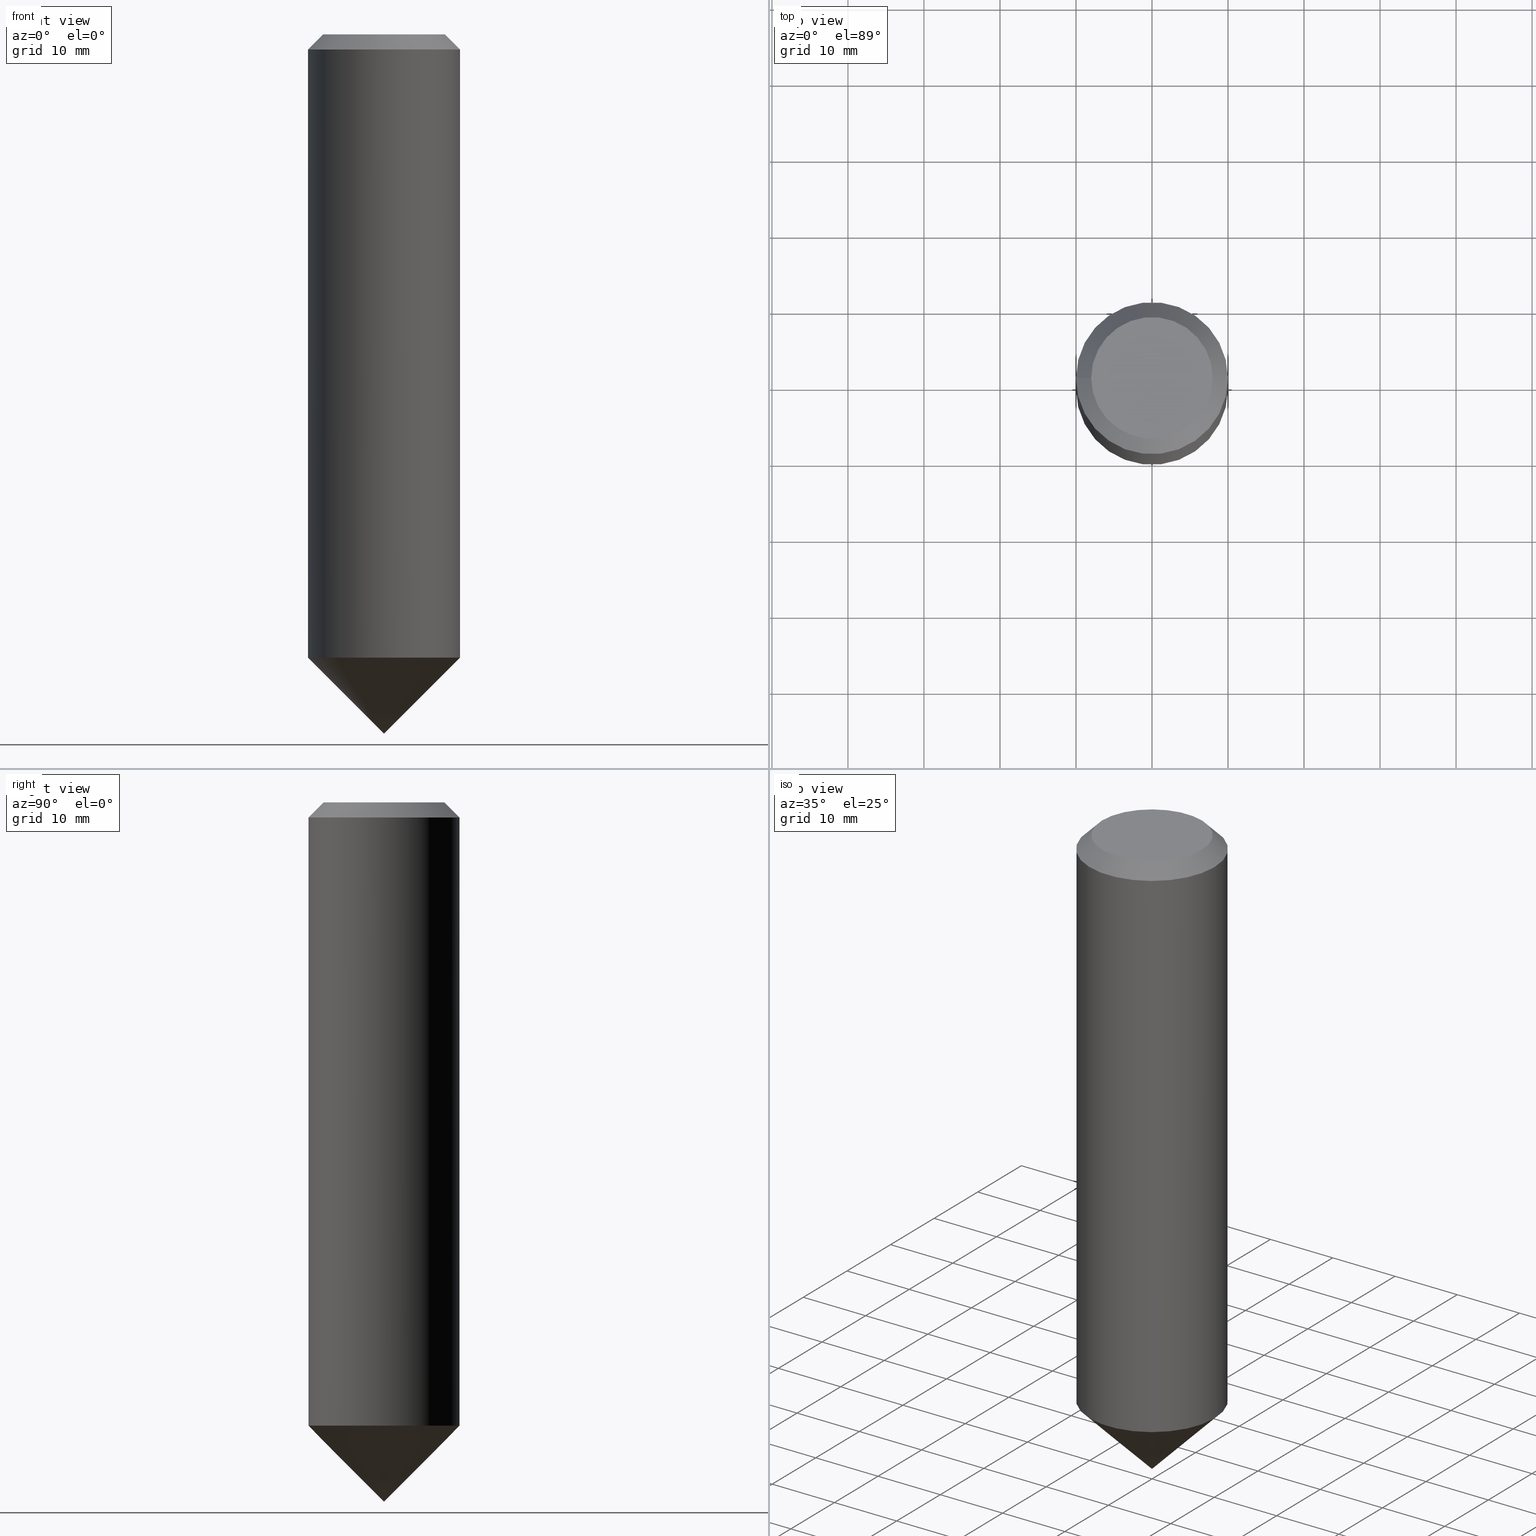
[diagram: canonical four-view strip — front | top / right | iso, engineering-drawing reading convention]
A machine part, canonical four-view strip (front | top / right | iso — engineering-drawing reading convention). The complete STEP part file that produces these views, byte-faithful:
ISO-10303-21;
HEADER;
FILE_DESCRIPTION (( 'STEP AP203' ),
    '1' );
FILE_NAME ('890.200.00.STEP',
    '2019-01-08T22:16:13',
    ( '' ),
    ( '' ),
    'SwSTEP 2.0',
    'SolidWorks 2019',
    '' );
FILE_SCHEMA (( 'CONFIG_CONTROL_DESIGN' ));
ENDSEC;

DATA;
#1 = PERSON_AND_ORGANIZATION ( #126, #155 ) ;
#2 = APPLICATION_PROTOCOL_DEFINITION ( 'international standard', 'config_control_design', 1994, #69 ) ;
#3 = DATE_TIME_ROLE ( 'creation_date' ) ;
#4 = DATE_TIME_ROLE ( 'classification_date' ) ;
#5 = AXIS2_PLACEMENT_3D ( 'NONE', #21, #60, #72 ) ;
#6 = EDGE_LOOP ( 'NONE', ( #19 ) ) ;
#7 = DIRECTION ( 'NONE',  ( -6.982962677686266711E-15, 0.0000000000000000000, -1.000000000000000000 ) ) ;
#8 = FACE_OUTER_BOUND ( 'NONE', #6, .T. ) ;
#9 = FACE_OUTER_BOUND ( 'NONE', #61, .T. ) ;
#10 = DIRECTION ( 'NONE',  ( -6.982962677686266711E-15, 0.0000000000000000000, -1.000000000000000000 ) ) ;
#11 = DIRECTION ( 'NONE',  ( -6.982962677686266711E-15, 0.0000000000000000000, -1.000000000000000000 ) ) ;
#12 = ORIENTED_EDGE ( 'NONE', *, *, #55, .T. ) ;
#13 = PERSON_AND_ORGANIZATION ( #126, #155 ) ;
#14 = PRODUCT_DEFINITION ( 'UNKNOWN', '', #106, #64 ) ;
#15 = LOCAL_TIME ( 23, 16, 13.00000000000000000, #170 ) ;
#16 = APPLICATION_PROTOCOL_DEFINITION ( 'international standard', 'config_control_design', 1994, #175 ) ;
#17 = FACE_OUTER_BOUND ( 'NONE', #46, .T. ) ;
#18 = FACE_OUTER_BOUND ( 'NONE', #173, .T. ) ;
#19 = ORIENTED_EDGE ( 'NONE', *, *, #167, .T. ) ;
#20 = CC_DESIGN_APPROVAL ( #136, ( #14 ) ) ;
#21 = CARTESIAN_POINT ( 'NONE',  ( -1.396592535537254604E-14, 0.0000000000000000000, -2.000000000000001776 ) ) ;
#22 = ORIENTED_EDGE ( 'NONE', *, *, #55, .F. ) ;
#23 = FACE_BOUND ( 'NONE', #176, .T. ) ;
#24 = DATE_AND_TIME ( #171, #156 ) ;
#25 = DATE_AND_TIME ( #107, #44 ) ;
#26 = EDGE_CURVE ( 'NONE', #179, #179, #123, .T. ) ;
#27 = PRODUCT ( '890.200.00', '890.200.00', '', ( #68 ) ) ;
#28 = CC_DESIGN_PERSON_AND_ORGANIZATION_ASSIGNMENT ( #13, #165, ( #106 ) ) ;
#29 = CONICAL_SURFACE ( 'NONE', #51, 1000.000000000003070, 0.7853981633974499443 ) ;
#30 = PERSON_AND_ORGANIZATION ( #126, #155 ) ;
#31 = APPROVAL_DATE_TIME ( #153, #136 ) ;
#32 = ADVANCED_FACE ( 'NONE', ( #9 ), #29, .T. ) ;
#33 = LOCAL_TIME ( 23, 16, 13.00000000000000000, #154 ) ;
#34 = MANIFOLD_SOLID_BREP ( 'TYp 17 drehen[1]', #99 ) ;
#35 = DIRECTION ( 'NONE',  ( -1.000000000000000000, 0.0000000000000000000, 6.982962677686266711E-15 ) ) ;
#36 = CC_DESIGN_PERSON_AND_ORGANIZATION_ASSIGNMENT ( #1, #108, ( #148 ) ) ;
#37 = CARTESIAN_POINT ( 'NONE',  ( 0.0000000000000000000, 0.0000000000000000000, 0.0000000000000000000 ) ) ;
#38 = APPROVAL_ROLE ( '' ) ;
#39 = APPROVAL_STATUS ( 'not_yet_approved' ) ;
#40 = PERSON_AND_ORGANIZATION ( #126, #155 ) ;
#41 = APPROVAL ( #39, 'UNSPECIFIED' ) ;
#42 = DATE_AND_TIME ( #91, #15 ) ;
#43 = DIRECTION ( 'NONE',  ( 0.0000000000000000000, 0.0000000000000000000, 1.000000000000000000 ) ) ;
#44 = LOCAL_TIME ( 23, 16, 13.00000000000000000, #52 ) ;
#45 = CC_DESIGN_APPROVAL ( #164, ( #106 ) ) ;
#46 = EDGE_LOOP ( 'NONE', ( #142 ) ) ;
#47 = CARTESIAN_POINT ( 'NONE',  ( 9.999999999999422684, 0.0000000000000000000, -82.00000000000009948 ) ) ;
#48 = AXIS2_PLACEMENT_3D ( 'NONE', #73, #129, #144 ) ;
#49 = EDGE_CURVE ( 'NONE', #127, #127, #83, .T. ) ;
#50 = PLANE ( 'NONE',  #158 ) ;
#51 = AXIS2_PLACEMENT_3D ( 'NONE', #59, #102, #161 ) ;
#52 = COORDINATED_UNIVERSAL_TIME_OFFSET ( 1, 0, .AHEAD. ) ;
#53 = ADVANCED_BREP_SHAPE_REPRESENTATION ( '890.200.00', ( #34, #151, #131 ), #166 ) ;
#54 = APPROVAL_ROLE ( '' ) ;
#55 = EDGE_CURVE ( 'NONE', #174, #174, #121, .T. ) ;
#56 = UNCERTAINTY_MEASURE_WITH_UNIT (LENGTH_MEASURE( 1.000000000000000082E-05 ), #146, 'distance_accuracy_value', 'NONE');
#57 = FACE_OUTER_BOUND ( 'NONE', #159, .T. ) ;
#58 = DIRECTION ( 'NONE',  ( -1.000000000000000000, 0.0000000000000000000, 6.982962677686266711E-15 ) ) ;
#59 = CARTESIAN_POINT ( 'NONE',  ( 6.340530111339130678E-12, 0.0000000000000000000, 908.0000000000000000 ) ) ;
#60 = DIRECTION ( 'NONE',  ( -6.982962677686266711E-15, 0.0000000000000000000, -1.000000000000000000 ) ) ;
#61 = EDGE_LOOP ( 'NONE', ( #117 ) ) ;
#62 = CARTESIAN_POINT ( 'NONE',  ( 0.0000000000000000000, 0.0000000000000000000, 0.0000000000000000000 ) ) ;
#63 = DIRECTION ( 'NONE',  ( 1.000000000000000000, 0.0000000000000000000, 0.0000000000000000000 ) ) ;
#64 = DESIGN_CONTEXT ( 'detailed design', #69, 'design' ) ;
#65 = APPROVAL_PERSON_ORGANIZATION ( #82, #41, #78 ) ;
#66 = PERSON_AND_ORGANIZATION ( #126, #155 ) ;
#67 = CC_DESIGN_DATE_AND_TIME_ASSIGNMENT ( #42, #4, ( #148 ) ) ;
#68 = MECHANICAL_CONTEXT ( 'NONE', #175, 'mechanical' ) ;
#69 = APPLICATION_CONTEXT ( 'configuration controlled 3d designs of mechanical parts and assemblies' ) ;
#70 = CARTESIAN_POINT ( 'NONE',  ( -3.111405660445696787E-30, 0.0000000000000000000, -4.455709995970691549E-16 ) ) ;
#71 = DIRECTION ( 'NONE',  ( -1.000000000000000000, 0.0000000000000000000, 6.982962677686266711E-15 ) ) ;
#72 = DIRECTION ( 'NONE',  ( -1.000000000000000000, 0.0000000000000000000, 6.982261990806648555E-15 ) ) ;
#73 = CARTESIAN_POINT ( 'NONE',  ( -5.726029395702741227E-13, 0.0000000000000000000, -82.00000000000002842 ) ) ;
#74 = CARTESIAN_POINT ( 'NONE',  ( -5.726029395702738198E-13, 0.0000000000000000000, -81.99999999999998579 ) ) ;
#75 = DIRECTION ( 'NONE',  ( -6.982962677686266711E-15, 0.0000000000000000000, -1.000000000000000000 ) ) ;
#76 = PRODUCT_DEFINITION_SHAPE ( 'NONE', 'NONE',  #14 ) ;
#77 = APPROVAL_DATE_TIME ( #24, #41 ) ;
#78 = APPROVAL_ROLE ( '' ) ;
#79 = PERSON_AND_ORGANIZATION ( #126, #155 ) ;
#80 = APPROVAL_STATUS ( 'not_yet_approved' ) ;
#81 = CC_DESIGN_SECURITY_CLASSIFICATION ( #148, ( #106 ) ) ;
#82 = PERSON_AND_ORGANIZATION ( #126, #155 ) ;
#83 = CIRCLE ( 'NONE', #95, 7.999999999999992895 ) ;
#84 = APPROVAL_PERSON_ORGANIZATION ( #66, #164, #38 ) ;
#85 = AXIS2_PLACEMENT_3D ( 'NONE', #70, #75, #113 ) ;
#86 = CARTESIAN_POINT ( 'NONE',  ( -10.00000000000001421, 0.0000000000000000000, -1.999999999999932054 ) ) ;
#87 =( NAMED_UNIT ( * ) PLANE_ANGLE_UNIT ( ) SI_UNIT ( $, .RADIAN. ) );
#88 = ADVANCED_FACE ( 'NONE', ( #8 ), #128, .T. ) ;
#89 = CARTESIAN_POINT ( 'NONE',  ( -5.726029395702741227E-13, 0.0000000000000000000, -82.00000000000002842 ) ) ;
#90 = DIRECTION ( 'NONE',  ( -1.000000000000000000, 0.0000000000000000000, 6.982962677686266711E-15 ) ) ;
#91 = CALENDAR_DATE ( 2019, 8, 1 ) ;
#92 = COORDINATED_UNIVERSAL_TIME_OFFSET ( 1, 0, .AHEAD. ) ;
#93 =( NAMED_UNIT ( * ) SI_UNIT ( $, .STERADIAN. ) SOLID_ANGLE_UNIT ( ) );
#94 = DATE_AND_TIME ( #168, #33 ) ;
#95 = AXIS2_PLACEMENT_3D ( 'NONE', #62, #114, #71 ) ;
#96 = APPROVAL_PERSON_ORGANIZATION ( #30, #136, #54 ) ;
#97 = ORIENTED_EDGE ( 'NONE', *, *, #167, .F. ) ;
#98 = ADVANCED_FACE ( 'NONE', ( #17 ), #50, .F. ) ;
#99 = CLOSED_SHELL ( 'NONE', ( #122, #182, #120, #88 ) ) ;
#100 = ORIENTED_EDGE ( 'NONE', *, *, #49, .T. ) ;
#101 = CARTESIAN_POINT ( 'NONE',  ( -7.999999999999992895, 0.0000000000000000000, 5.586370142149008320E-14 ) ) ;
#102 = DIRECTION ( 'NONE',  ( 6.982962677686266711E-15, 0.0000000000000000000, 1.000000000000000000 ) ) ;
#103 = CARTESIAN_POINT ( 'NONE',  ( -6.424325663471364364E-13, 0.0000000000000000000, -92.00000000000000000 ) ) ;
#104 = EDGE_LOOP ( 'NONE', ( #97 ) ) ;
#105 = PERSON_AND_ORGANIZATION_ROLE ( 'creator' ) ;
#106 = PRODUCT_DEFINITION_FORMATION_WITH_SPECIFIED_SOURCE ( 'ANY', '', #27, .NOT_KNOWN. ) ;
#107 = CALENDAR_DATE ( 2019, 8, 1 ) ;
#108 = PERSON_AND_ORGANIZATION_ROLE ( 'classification_officer' ) ;
#109 = CC_DESIGN_PERSON_AND_ORGANIZATION_ASSIGNMENT ( #79, #105, ( #106 ) ) ;
#110 = COORDINATED_UNIVERSAL_TIME_OFFSET ( 1, 0, .AHEAD. ) ;
#111 = AXIS2_PLACEMENT_3D ( 'NONE', #103, #11, #116 ) ;
#112 = EDGE_LOOP ( 'NONE', ( #22 ) ) ;
#113 = DIRECTION ( 'NONE',  ( -1.000000000000000000, 0.0000000000000000000, 6.982962677686266711E-15 ) ) ;
#114 = DIRECTION ( 'NONE',  ( -6.982962677686266711E-15, 0.0000000000000000000, -1.000000000000000000 ) ) ;
#115 = AXIS2_PLACEMENT_3D ( 'NONE', #180, #7, #90 ) ;
#116 = DIRECTION ( 'NONE',  ( -1.000000000000000000, 0.0000000000000000000, 6.938893903907232322E-15 ) ) ;
#117 = ORIENTED_EDGE ( 'NONE', *, *, #26, .T. ) ;
#118 = DIRECTION ( 'NONE',  ( 1.000000000000000000, 0.0000000000000000000, -6.938893903907232322E-15 ) ) ;
#119 = APPROVAL_STATUS ( 'not_yet_approved' ) ;
#120 = ADVANCED_FACE ( 'NONE', ( #132, #23 ), #172, .T. ) ;
#121 = CIRCLE ( 'NONE', #5, 10.00000000000000000 ) ;
#122 = ADVANCED_FACE ( 'NONE', ( #57, #162 ), #147, .T. ) ;
#123 = CIRCLE ( 'NONE', #48, 9.999999999999994671 ) ;
#124 = AXIS2_PLACEMENT_3D ( 'NONE', #37, #149, #58 ) ;
#125 = APPROVAL_DATE_TIME ( #94, #164 ) ;
#126 = PERSON ( 'UNSPECIFIED', 'UNSPECIFIED', 'UNSPECIFIED', ('UNSPECIFIED'), ('UNSPECIFIED'), ('UNSPECIFIED') ) ;
#127 = VERTEX_POINT ( 'NONE', #101 ) ;
#128 = PLANE ( 'NONE',  #115 ) ;
#129 = DIRECTION ( 'NONE',  ( -6.982962677686266711E-15, -0.0000000000000000000, -1.000000000000000000 ) ) ;
#130 = DIRECTION ( 'NONE',  ( -6.982962677686266711E-15, -0.0000000000000000000, -1.000000000000000000 ) ) ;
#131 = AXIS2_PLACEMENT_3D ( 'NONE', #139, #43, #63 ) ;
#132 = FACE_OUTER_BOUND ( 'NONE', #112, .T. ) ;
#133 = PERSON_AND_ORGANIZATION_ROLE ( 'design_owner' ) ;
#134 = PRODUCT_RELATED_PRODUCT_CATEGORY ( 'detail', '', ( #27 ) ) ;
#135 = SHAPE_DEFINITION_REPRESENTATION ( #76, #53 ) ;
#136 = APPROVAL ( #119, 'UNSPECIFIED' ) ;
#137 = PERSON_AND_ORGANIZATION ( #126, #155 ) ;
#138 = SECURITY_CLASSIFICATION_LEVEL ( 'unclassified' ) ;
#139 = CARTESIAN_POINT ( 'NONE',  ( 0.0000000000000000000, 0.0000000000000000000, 0.0000000000000000000 ) ) ;
#140 = AXIS2_PLACEMENT_3D ( 'NONE', #89, #130, #118 ) ;
#141 = CC_DESIGN_APPROVAL ( #41, ( #148 ) ) ;
#142 = ORIENTED_EDGE ( 'NONE', *, *, #26, .F. ) ;
#143 = CARTESIAN_POINT ( 'NONE',  ( 9.999999999999422684, 0.0000000000000000000, -82.00000000000009948 ) ) ;
#144 = DIRECTION ( 'NONE',  ( 1.000000000000000000, 0.0000000000000000000, -6.938893903907232322E-15 ) ) ;
#145 = CC_DESIGN_PERSON_AND_ORGANIZATION_ASSIGNMENT ( #137, #152, ( #14 ) ) ;
#146 =( LENGTH_UNIT ( ) NAMED_UNIT ( * ) SI_UNIT ( .MILLI., .METRE. ) );
#147 = CYLINDRICAL_SURFACE ( 'NONE', #111, 9.999999999999994671 ) ;
#148 = SECURITY_CLASSIFICATION ( '', '', #138 ) ;
#149 = DIRECTION ( 'NONE',  ( -6.982962677686266711E-15, 0.0000000000000000000, -1.000000000000000000 ) ) ;
#150 = CC_DESIGN_PERSON_AND_ORGANIZATION_ASSIGNMENT ( #40, #133, ( #27 ) ) ;
#151 = MANIFOLD_SOLID_BREP ( 'TYp 17 drehen[2]', #183 ) ;
#152 = PERSON_AND_ORGANIZATION_ROLE ( 'creator' ) ;
#153 = DATE_AND_TIME ( #181, #163 ) ;
#154 = COORDINATED_UNIVERSAL_TIME_OFFSET ( 1, 0, .AHEAD. ) ;
#155 = ORGANIZATION ( 'UNSPECIFIED', 'UNSPECIFIED', '' ) ;
#156 = LOCAL_TIME ( 23, 16, 13.00000000000000000, #110 ) ;
#157 = ORIENTED_EDGE ( 'NONE', *, *, #49, .F. ) ;
#158 = AXIS2_PLACEMENT_3D ( 'NONE', #74, #10, #35 ) ;
#159 = EDGE_LOOP ( 'NONE', ( #12 ) ) ;
#160 = VERTEX_POINT ( 'NONE', #143 ) ;
#161 = DIRECTION ( 'NONE',  ( 1.000000000000000000, 0.0000000000000000000, -6.994405055138464905E-15 ) ) ;
#162 = FACE_OUTER_BOUND ( 'NONE', #104, .T. ) ;
#163 = LOCAL_TIME ( 23, 16, 13.00000000000000000, #92 ) ;
#164 = APPROVAL ( #80, 'UNSPECIFIED' ) ;
#165 = PERSON_AND_ORGANIZATION_ROLE ( 'design_supplier' ) ;
#166 =( GEOMETRIC_REPRESENTATION_CONTEXT ( 3 ) GLOBAL_UNCERTAINTY_ASSIGNED_CONTEXT ( ( #56 ) ) GLOBAL_UNIT_ASSIGNED_CONTEXT ( ( #146, #87, #93 ) ) REPRESENTATION_CONTEXT ( 'NONE', 'WORKASPACE' ) );
#167 = EDGE_CURVE ( 'NONE', #160, #160, #169, .T. ) ;
#168 = CALENDAR_DATE ( 2019, 8, 1 ) ;
#169 = CIRCLE ( 'NONE', #140, 9.999999999999994671 ) ;
#170 = COORDINATED_UNIVERSAL_TIME_OFFSET ( 1, 0, .AHEAD. ) ;
#171 = CALENDAR_DATE ( 2019, 8, 1 ) ;
#172 = CONICAL_SURFACE ( 'NONE', #124, 7.999999999999992895, 0.7853981633974496113 ) ;
#173 = EDGE_LOOP ( 'NONE', ( #157 ) ) ;
#174 = VERTEX_POINT ( 'NONE', #86 ) ;
#175 = APPLICATION_CONTEXT ( 'configuration controlled 3d designs of mechanical parts and assemblies' ) ;
#176 = EDGE_LOOP ( 'NONE', ( #100 ) ) ;
#177 = PLANE ( 'NONE',  #85 ) ;
#178 = CC_DESIGN_DATE_AND_TIME_ASSIGNMENT ( #25, #3, ( #14 ) ) ;
#179 = VERTEX_POINT ( 'NONE', #47 ) ;
#180 = CARTESIAN_POINT ( 'NONE',  ( -5.726029395702738198E-13, 0.0000000000000000000, -81.99999999999998579 ) ) ;
#181 = CALENDAR_DATE ( 2019, 8, 1 ) ;
#182 = ADVANCED_FACE ( 'NONE', ( #18 ), #177, .F. ) ;
#183 = CLOSED_SHELL ( 'NONE', ( #98, #32 ) ) ;
ENDSEC;
END-ISO-10303-21;
12558